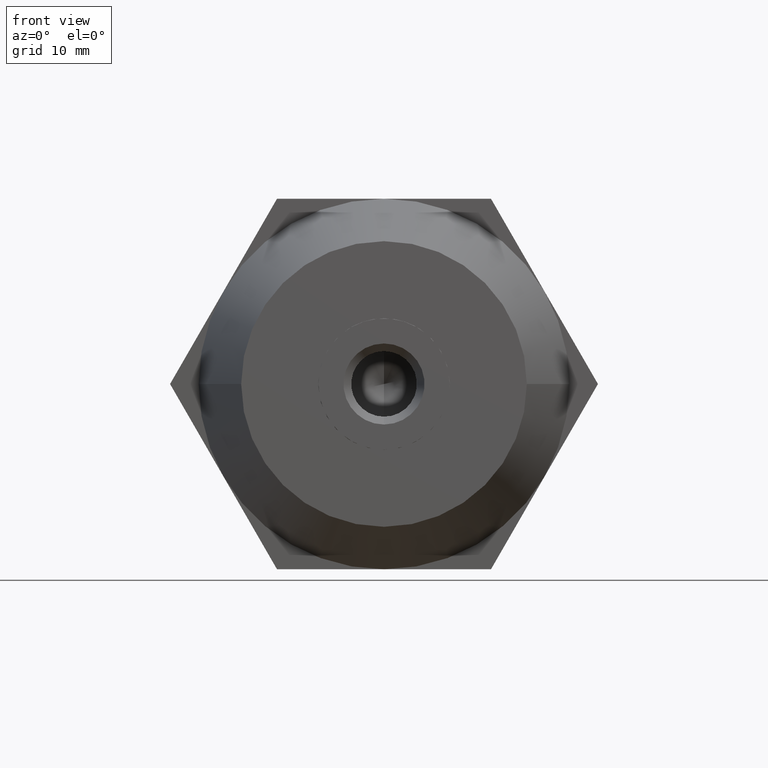
[diagram: clean part render]
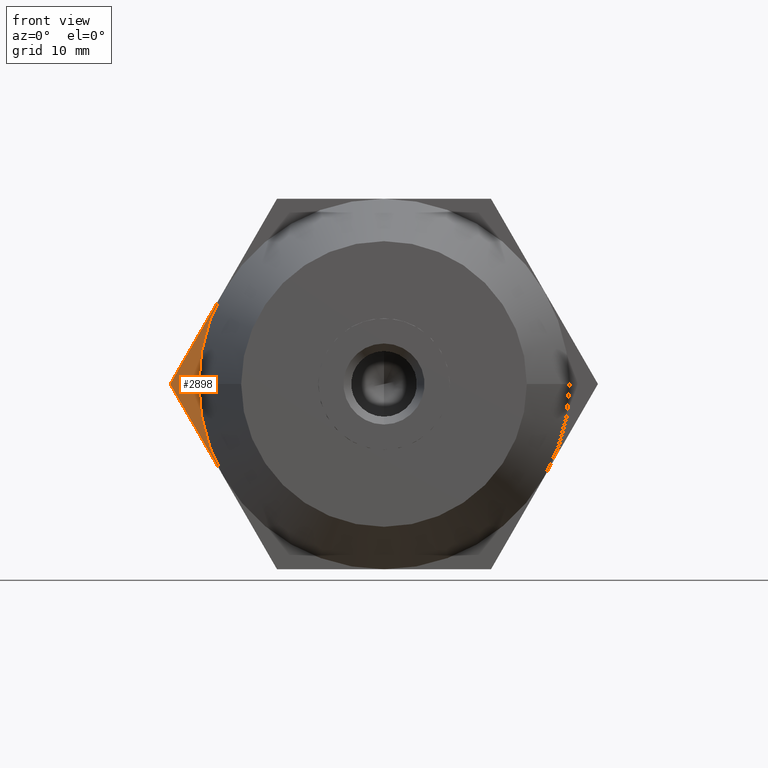
[diagram: same view with one face highlighted and labeled with its STEP entity id]
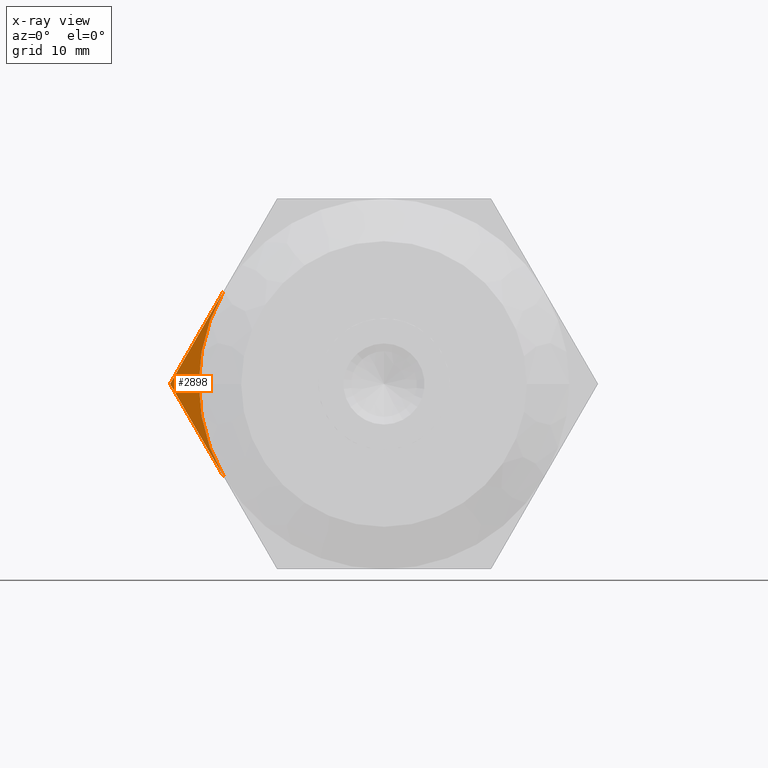
[diagram: x-ray of the same camera — body ghosted, the highlighted face saturated]
A machine part, front view. The second image highlights one B-rep face of the part: STEP entity #2898.
The next image is the same camera in x-ray: the body ghosted, the highlighted face saturated — about 0% of this face is hidden behind the body in this view.
In plain terms, the highlighted planar face has unit normal (0, 1, 0).
Its self-contained STEP definition (entity closure, byte-faithful):
#147 = VECTOR ( 'NONE', #2129, 1000.000000000000000 ) ;
#228 = CARTESIAN_POINT ( 'NONE',  ( -20.78460969082650000, -5.000000000000000000, 12.00000000000000000 ) ) ;
#251 = VERTEX_POINT ( 'NONE', #740 ) ;
#259 = PLANE ( 'NONE',  #2996 ) ;
#347 = AXIS2_PLACEMENT_3D ( 'NONE', #1473, #590, #3970 ) ;
#526 = DIRECTION ( 'NONE',  ( 0.0000000000000000000, 0.0000000000000000000, 1.000000000000000000 ) ) ;
#590 = DIRECTION ( 'NONE',  ( 0.0000000000000000000, 1.000000000000000000, 0.0000000000000000000 ) ) ;
#596 = EDGE_CURVE ( 'NONE', #251, #1136, #2903, .T. ) ;
#602 = ORIENTED_EDGE ( 'NONE', *, *, #596, .F. ) ;
#641 = CARTESIAN_POINT ( 'NONE',  ( -20.78460969082655300, -5.000000000000000000, -12.00000000000000000 ) ) ;
#699 = DIRECTION ( 'NONE',  ( 0.0000000000000000000, 1.000000000000000000, 0.0000000000000000000 ) ) ;
#736 = EDGE_CURVE ( 'NONE', #2324, #1938, #2373, .T. ) ;
#740 = CARTESIAN_POINT ( 'NONE',  ( -27.71281292110205300, -5.000000000000000000, 3.597623130494369400E-015 ) ) ;
#756 = FACE_OUTER_BOUND ( 'NONE', #3209, .T. ) ;
#895 = ORIENTED_EDGE ( 'NONE', *, *, #903, .T. ) ;
#903 = EDGE_CURVE ( 'NONE', #1938, #1136, #3830, .T. ) ;
#908 = LINE ( 'NONE', #2208, #1475 ) ;
#1136 = VERTEX_POINT ( 'NONE', #228 ) ;
#1473 = CARTESIAN_POINT ( 'NONE',  ( 4.286263797015734900E-015, -5.000000000000000000, 6.466135099498040200E-016 ) ) ;
#1475 = VECTOR ( 'NONE', #3453, 1000.000000000000000 ) ;
#1636 = EDGE_CURVE ( 'NONE', #2324, #251, #908, .T. ) ;
#1646 = CARTESIAN_POINT ( 'NONE',  ( 4.286263797015734900E-015, -5.000000000000000000, 6.466135099498040200E-016 ) ) ;
#1929 = DIRECTION ( 'NONE',  ( 0.0000000000000000000, 0.0000000000000000000, 1.000000000000000000 ) ) ;
#1938 = VERTEX_POINT ( 'NONE', #2488 ) ;
#2030 = ORIENTED_EDGE ( 'NONE', *, *, #1636, .F. ) ;
#2096 = CARTESIAN_POINT ( 'NONE',  ( -27.71281292110205300, -5.000000000000000000, 3.597623130494369400E-015 ) ) ;
#2129 = DIRECTION ( 'NONE',  ( 0.4999999999999998900, 0.0000000000000000000, 0.8660254037844387100 ) ) ;
#2170 = ORIENTED_EDGE ( 'NONE', *, *, #736, .T. ) ;
#2208 = CARTESIAN_POINT ( 'NONE',  ( -13.85640646055101900, -5.000000000000000000, -24.00000000000000000 ) ) ;
#2324 = VERTEX_POINT ( 'NONE', #641 ) ;
#2373 = CIRCLE ( 'NONE', #347, 24.00000000000000000 ) ;
#2378 = CARTESIAN_POINT ( 'NONE',  ( 0.0000000000000000000, -5.000000000000000000, 0.0000000000000000000 ) ) ;
#2488 = CARTESIAN_POINT ( 'NONE',  ( -23.99999999999999600, -5.000000000000000000, 0.0000000000000000000 ) ) ;
#2898 = ADVANCED_FACE ( 'NONE', ( #756 ), #259, .F. ) ;
#2903 = LINE ( 'NONE', #2096, #147 ) ;
#2996 = AXIS2_PLACEMENT_3D ( 'NONE', #2378, #3005, #526 ) ;
#3005 = DIRECTION ( 'NONE',  ( 0.0000000000000000000, 1.000000000000000000, 0.0000000000000000000 ) ) ;
#3209 = EDGE_LOOP ( 'NONE', ( #2030, #2170, #895, #602 ) ) ;
#3367 = AXIS2_PLACEMENT_3D ( 'NONE', #1646, #699, #1929 ) ;
#3453 = DIRECTION ( 'NONE',  ( -0.4999999999999998900, 0.0000000000000000000, 0.8660254037844387100 ) ) ;
#3830 = CIRCLE ( 'NONE', #3367, 24.00000000000000000 ) ;
#3970 = DIRECTION ( 'NONE',  ( 0.0000000000000000000, 0.0000000000000000000, 1.000000000000000000 ) ) ;